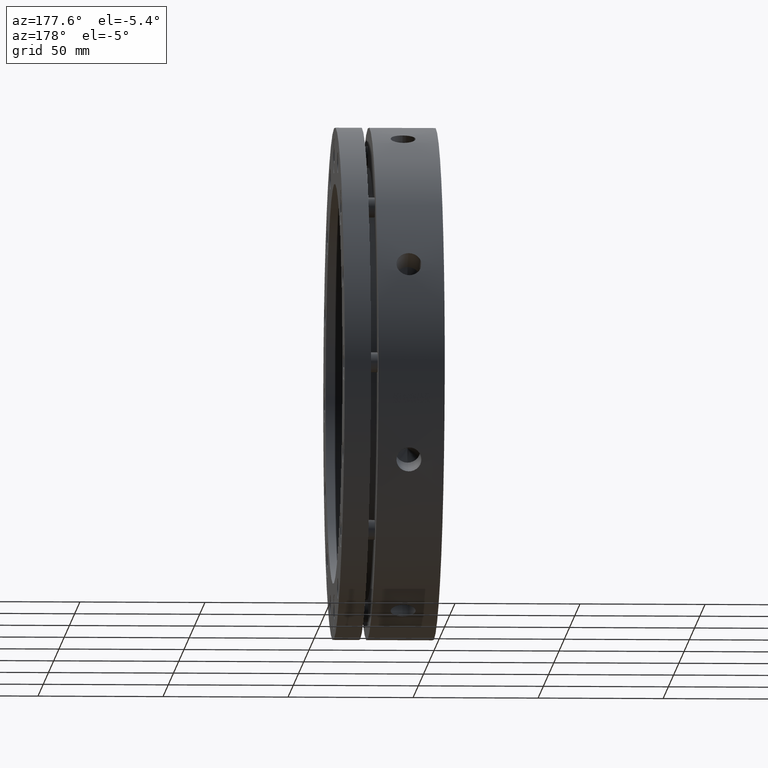
[diagram: clean part render]
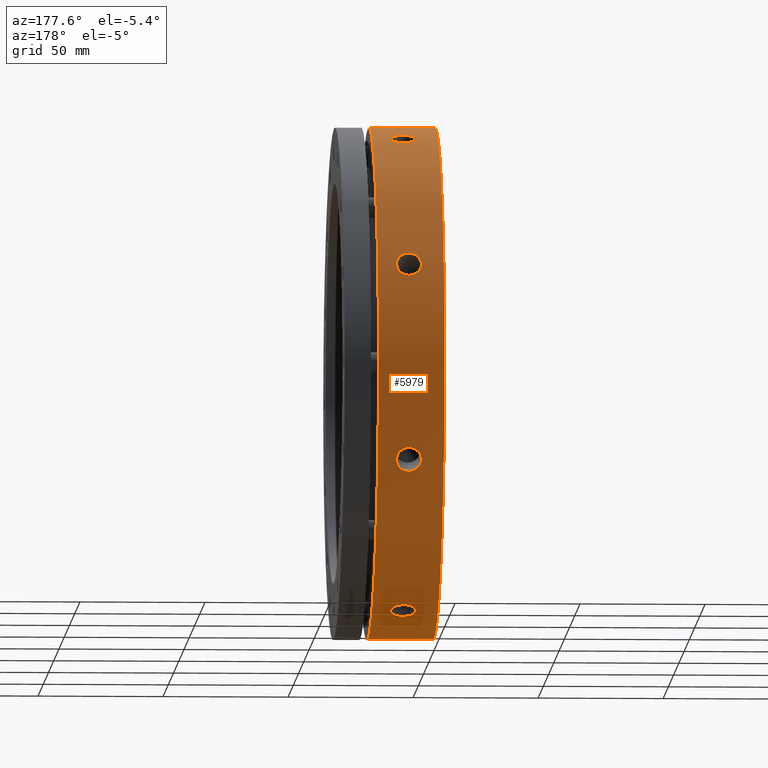
[diagram: same view with one face highlighted and labeled with its STEP entity id]
A machine part, auxiliary view. The second image highlights one B-rep face of the part: STEP entity #5979.
In plain terms, the highlighted cylindrical surface (partial cylindrical patch) has radius 102.5 mm, axis along (1, 0, 0).
Its self-contained STEP definition (entity closure, byte-faithful):
#38 = AXIS2_PLACEMENT_3D ( 'NONE', #4442, #4443, #4444 ) ;
#39 = AXIS2_PLACEMENT_3D ( 'NONE', #4636, #4637, #4638 ) ;
#150 = AXIS2_PLACEMENT_3D ( 'NONE', #497, #494, #496 ) ;
#494 = DIRECTION ( 'NONE',  ( 1.000000000000000000, 0.0000000000000000000, 0.0000000000000000000 ) ) ;
#496 = DIRECTION ( 'NONE',  ( 0.0000000000000000000, 0.0000000000000000000, -1.000000000000000000 ) ) ;
#497 = CARTESIAN_POINT ( 'NONE',  ( 19.99999999999997200, 0.0000000000000000000, 0.0000000000000000000 ) ) ;
#837 = VERTEX_POINT ( 'NONE', #1422 ) ;
#840 = VERTEX_POINT ( 'NONE', #1418 ) ;
#841 = VERTEX_POINT ( 'NONE', #1426 ) ;
#842 = VERTEX_POINT ( 'NONE', #1425 ) ;
#1296 = EDGE_LOOP ( 'NONE', ( #1330, #1331 ) ) ;
#1300 = EDGE_LOOP ( 'NONE', ( #1326, #1327 ) ) ;
#1304 = EDGE_LOOP ( 'NONE', ( #5502, #1325 ) ) ;
#1315 = EDGE_LOOP ( 'NONE', ( #1328, #1329 ) ) ;
#1319 = EDGE_LOOP ( 'NONE', ( #1332, #1333, #1334, #1335 ) ) ;
#1325 = ORIENTED_EDGE ( 'NONE', *, *, #5744, .T. ) ;
#1326 = ORIENTED_EDGE ( 'NONE', *, *, #5742, .T. ) ;
#1327 = ORIENTED_EDGE ( 'NONE', *, *, #5655, .T. ) ;
#1328 = ORIENTED_EDGE ( 'NONE', *, *, #5743, .T. ) ;
#1329 = ORIENTED_EDGE ( 'NONE', *, *, #5741, .T. ) ;
#1330 = ORIENTED_EDGE ( 'NONE', *, *, #5740, .T. ) ;
#1331 = ORIENTED_EDGE ( 'NONE', *, *, #5737, .T. ) ;
#1332 = ORIENTED_EDGE ( 'NONE', *, *, #5739, .T. ) ;
#1333 = ORIENTED_EDGE ( 'NONE', *, *, #5738, .T. ) ;
#1334 = ORIENTED_EDGE ( 'NONE', *, *, #5745, .T. ) ;
#1335 = ORIENTED_EDGE ( 'NONE', *, *, #5746, .F. ) ;
#1418 = CARTESIAN_POINT ( 'NONE',  ( -3.122502256758252800E-014, 0.0000000000000000000, -102.5000000000000100 ) ) ;
#1422 = CARTESIAN_POINT ( 'NONE',  ( 26.49999999999997900, 0.0000000000000000000, -102.5000000000000100 ) ) ;
#1425 = CARTESIAN_POINT ( 'NONE',  ( 13.99999999999997700, 92.67149958051646800, -43.79775297316448500 ) ) ;
#1426 = CARTESIAN_POINT ( 'NONE',  ( 13.99999999999997700, 34.55895764805162400, 96.49833390416735300 ) ) ;
#2071 = CARTESIAN_POINT ( 'NONE',  ( -3.122502256758252800E-014, 1.255262969126037200E-014, 102.5000000000000100 ) ) ;
#2072 = CARTESIAN_POINT ( 'NONE',  ( 13.99999999999997700, 92.67149958051645300, 43.79775297316447800 ) ) ;
#2073 = CARTESIAN_POINT ( 'NONE',  ( 13.99999999999997700, 34.55895764805161000, -96.49833390416736700 ) ) ;
#2078 = CARTESIAN_POINT ( 'NONE',  ( 13.99999999999997700, 43.79775297316449900, 92.67149958051645300 ) ) ;
#2079 = CARTESIAN_POINT ( 'NONE',  ( 13.99999999999997700, 96.49833390416736700, 34.55895764805161000 ) ) ;
#2080 = CARTESIAN_POINT ( 'NONE',  ( 13.99999999999997700, 43.79775297316447800, -92.67149958051645300 ) ) ;
#2081 = CARTESIAN_POINT ( 'NONE',  ( 13.99999999999997700, 96.49833390416736700, -34.55895764805161700 ) ) ;
#2082 = CARTESIAN_POINT ( 'NONE',  ( 26.49999999999997900, 1.255262969126037200E-014, 102.5000000000000100 ) ) ;
#3959 = CARTESIAN_POINT ( 'NONE',  ( 13.99999999999997700, 96.49833390416736700, 34.55895764805161000 ) ) ;
#3960 = CARTESIAN_POINT ( 'NONE',  ( 14.32610987450070400, 96.49833390416733900, 34.55895764805161000 ) ) ;
#3965 = CARTESIAN_POINT ( 'NONE',  ( 14.65733575371293700, 96.48733289431515900, 34.58971939376618800 ) ) ;
#3966 = CARTESIAN_POINT ( 'NONE',  ( 15.29848184151969500, 96.44405848933981000, 34.71019560450030600 ) ) ;
#3967 = CARTESIAN_POINT ( 'NONE',  ( 15.61010808271129400, 96.41202564002897200, 34.79923913236787300 ) ) ;
#3968 = CARTESIAN_POINT ( 'NONE',  ( 16.21536522272568300, 96.32657016155272300, 35.03509116752495300 ) ) ;
#3969 = CARTESIAN_POINT ( 'NONE',  ( 16.50802265644296400, 96.27294253316647100, 35.18242976404695100 ) ) ;
#3970 = CARTESIAN_POINT ( 'NONE',  ( 17.04962758242717100, 96.14796007054273700, 35.52256469301993700 ) ) ;
#3971 = CARTESIAN_POINT ( 'NONE',  ( 17.30207116379845900, 96.07618457453568800, 35.71654061675380400 ) ) ;
#3972 = CARTESIAN_POINT ( 'NONE',  ( 17.76879344786817700, 95.91246960301356200, 36.15387518205325500 ) ) ;
#3973 = CARTESIAN_POINT ( 'NONE',  ( 17.97585978668183400, 95.82300658715657000, 36.39058619239849400 ) ) ;
#3974 = CARTESIAN_POINT ( 'NONE',  ( 18.24732360166880000, 95.67776899786757400, 36.76999943293240800 ) ) ;
#3975 = CARTESIAN_POINT ( 'NONE',  ( 18.33132006099477700, 95.62747582298828800, 36.90063399058707500 ) ) ;
#3976 = CARTESIAN_POINT ( 'NONE',  ( 18.48604952963857800, 95.52295146457144900, 37.17037348051016500 ) ) ;
#3977 = CARTESIAN_POINT ( 'NONE',  ( 18.55696218777415000, 95.46848998173422300, 37.31005720077892100 ) ) ;
#3978 = CARTESIAN_POINT ( 'NONE',  ( 18.74509430430704200, 95.30244285925766700, 37.73309125859503900 ) ) ;
#3979 = CARTESIAN_POINT ( 'NONE',  ( 18.83957171716016900, 95.18730604285066500, 38.02274827925048600 ) ) ;
#3980 = CARTESIAN_POINT ( 'NONE',  ( 18.96732987876120200, 94.94778554888031900, 38.61697344130422500 ) ) ;
#3981 = CARTESIAN_POINT ( 'NONE',  ( 19.00022771420598000, 94.82273896029163000, 38.92309440697961500 ) ) ;
#3982 = CARTESIAN_POINT ( 'NONE',  ( 18.99976988428112900, 94.56991295236015600, 39.53341202488437700 ) ) ;
#3983 = CARTESIAN_POINT ( 'NONE',  ( 18.96713576489195000, 94.44414146530667200, 39.83285349128378500 ) ) ;
#3984 = CARTESIAN_POINT ( 'NONE',  ( 18.87155251866171900, 94.25652939708791700, 40.27383995362436100 ) ) ;
#3985 = CARTESIAN_POINT ( 'NONE',  ( 18.83186165902429100, 94.19416979680895000, 40.41946365101561900 ) ) ;
#3986 = CARTESIAN_POINT ( 'NONE',  ( 18.73646076360221700, 94.06986468132281200, 40.70792581775023000 ) ) ;
#3987 = CARTESIAN_POINT ( 'NONE',  ( 18.68049313187259800, 94.00775924805148500, 40.85112119065471600 ) ) ;
#3988 = CARTESIAN_POINT ( 'NONE',  ( 18.49199198372262000, 93.82620591606378500, 41.26723505263058200 ) ) ;
#3989 = CARTESIAN_POINT ( 'NONE',  ( 18.33824750578520100, 93.71016280766181700, 41.52985930786684300 ) ) ;
#3990 = CARTESIAN_POINT ( 'NONE',  ( 17.97508315744157100, 93.48866836826124400, 42.02609563472404400 ) ) ;
#3991 = CARTESIAN_POINT ( 'NONE',  ( 17.76378849477159600, 93.38281004687525000, 42.26054828801952100 ) ) ;
#3992 = CARTESIAN_POINT ( 'NONE',  ( 17.30231337094845400, 93.19175450726176300, 42.68020672059900300 ) ) ;
#3993 = CARTESIAN_POINT ( 'NONE',  ( 17.05052230091687800, 93.10530733848398200, 42.86822997709587200 ) ) ;
#3994 = CARTESIAN_POINT ( 'NONE',  ( 16.50377644171319200, 92.95185774950526500, 43.19994834347000500 ) ) ;
#3995 = CARTESIAN_POINT ( 'NONE',  ( 16.21279981548669400, 92.88624560309516200, 43.34063809917992700 ) ) ;
#3996 = CARTESIAN_POINT ( 'NONE',  ( 15.61109441456621200, 92.78057361465272400, 43.56639407638189700 ) ) ;
#3997 = CARTESIAN_POINT ( 'NONE',  ( 15.29592215945044000, 92.73970933276726200, 43.65318342185536700 ) ) ;
#3998 = CARTESIAN_POINT ( 'NONE',  ( 14.65053394052820600, 92.68503054680148500, 43.76915834839398700 ) ) ;
#3999 = CARTESIAN_POINT ( 'NONE',  ( 14.32610966757651200, 92.67149958051649600, 43.79775297316449900 ) ) ;
#4000 = CARTESIAN_POINT ( 'NONE',  ( 13.99999999999997700, 92.67149958051645300, 43.79775297316447800 ) ) ;
#4006 = CARTESIAN_POINT ( 'NONE',  ( 13.99999999999997700, 34.55895764805162400, 96.49833390416735300 ) ) ;
#4007 = CARTESIAN_POINT ( 'NONE',  ( 13.67389033251383000, 34.55895764805163100, 96.49833390416736700 ) ) ;
#4011 = CARTESIAN_POINT ( 'NONE',  ( 13.34266466475485700, 34.58971935420560600, 96.48733290844420200 ) ) ;
#4012 = CARTESIAN_POINT ( 'NONE',  ( 12.70151896101123300, 34.71019541462606400, 96.44405855762246900 ) ) ;
#4013 = CARTESIAN_POINT ( 'NONE',  ( 12.38989290089886800, 34.79923883210531700, 96.41202574820030700 ) ) ;
#4014 = CARTESIAN_POINT ( 'NONE',  ( 11.78463609896788200, 35.03509056947447000, 96.32657037886411900 ) ) ;
#4015 = CARTESIAN_POINT ( 'NONE',  ( 11.49197878941848600, 35.18242899233134600, 96.27294281478369000 ) ) ;
#4016 = CARTESIAN_POINT ( 'NONE',  ( 10.95037406600939500, 35.52256352147697500, 96.14796050297518100 ) ) ;
#4017 = CARTESIAN_POINT ( 'NONE',  ( 10.69793056358424500, 35.71653921647081400, 96.07618509440163700 ) ) ;
#4018 = CARTESIAN_POINT ( 'NONE',  ( 10.23120838005397800, 36.15387325089698600, 95.91247033026255100 ) ) ;
#4019 = CARTESIAN_POINT ( 'NONE',  ( 10.02414198692712000, 36.39058405043350300, 95.82300739979393700 ) ) ;
#4020 = CARTESIAN_POINT ( 'NONE',  ( 9.752678096406656400, 36.76999689114229100, 95.67776997450110300 ) ) ;
#4021 = CARTESIAN_POINT ( 'NONE',  ( 9.668681603407579300, 36.90063131019191200, 95.62747685705888000 ) ) ;
#4022 = CARTESIAN_POINT ( 'NONE',  ( 9.513952047296204000, 37.17037051029506500, 95.52295262011867300 ) ) ;
#4023 = CARTESIAN_POINT ( 'NONE',  ( 9.443039324532264800, 37.31005409716431800, 95.46849119445254000 ) ) ;
#4024 = CARTESIAN_POINT ( 'NONE',  ( 9.254906970430319300, 37.73308779831123200, 95.30244422846274700 ) ) ;
#4025 = CARTESIAN_POINT ( 'NONE',  ( 9.160429368411648500, 38.02274457405338400, 95.18730752195315900 ) ) ;
#4026 = CARTESIAN_POINT ( 'NONE',  ( 9.032670738789299500, 38.61696922500432500, 94.94778726277756700 ) ) ;
#4027 = CARTESIAN_POINT ( 'NONE',  ( 8.999772614276654500, 38.92308950979667500, 94.82274097142749300 ) ) ;
#4028 = CARTESIAN_POINT ( 'NONE',  ( 9.000229780272164200, 39.53340763186726300, 94.56991478971892200 ) ) ;
#4029 = CARTESIAN_POINT ( 'NONE',  ( 9.032863624753957800, 39.83284934027428600, 94.44414321688633200 ) ) ;
#4030 = CARTESIAN_POINT ( 'NONE',  ( 9.128446513428521300, 40.27383615555487500, 94.25653102013519900 ) ) ;
#4031 = CARTESIAN_POINT ( 'NONE',  ( 9.168137263232925000, 40.41945996887886800, 94.19417137704651600 ) ) ;
#4032 = CARTESIAN_POINT ( 'NONE',  ( 9.263537954345185500, 40.70792236460113900, 94.06986617584722400 ) ) ;
#4033 = CARTESIAN_POINT ( 'NONE',  ( 9.319505501482092700, 40.85111787886371800, 94.00776068744259800 ) ) ;
#4034 = CARTESIAN_POINT ( 'NONE',  ( 9.508006445550613300, 41.26723217513978900, 93.82620718266460400 ) ) ;
#4035 = CARTESIAN_POINT ( 'NONE',  ( 9.661750829796664800, 41.52985669710154300, 93.71016396546943400 ) ) ;
#4036 = CARTESIAN_POINT ( 'NONE',  ( 10.02491505194403100, 42.02609352444842000, 93.48866931768402800 ) ) ;
#4037 = CARTESIAN_POINT ( 'NONE',  ( 10.23620971061820800, 42.26054644621393000, 93.38281088104713500 ) ) ;
#4038 = CARTESIAN_POINT ( 'NONE',  ( 10.69768491139634200, 42.68020536840262500, 93.19175512720529800 ) ) ;
#4039 = CARTESIAN_POINT ( 'NONE',  ( 10.94947604815599400, 42.86822883996875100, 93.10530786245840300 ) ) ;
#4040 = CARTESIAN_POINT ( 'NONE',  ( 11.49622208827096200, 43.19994758707666400, 92.95185810145442000 ) ) ;
#4041 = CARTESIAN_POINT ( 'NONE',  ( 11.78719887957196200, 43.34063753018498500, 92.88624586879387800 ) ) ;
#4042 = CARTESIAN_POINT ( 'NONE',  ( 12.38890460059897000, 43.56639378626738300, 92.78057375108639300 ) ) ;
#4043 = CARTESIAN_POINT ( 'NONE',  ( 12.70407702409552900, 43.65318323708648800, 92.73970941979602900 ) ) ;
#4044 = CARTESIAN_POINT ( 'NONE',  ( 13.34946564792068300, 43.76915831249285600, 92.68503056381216300 ) ) ;
#4045 = CARTESIAN_POINT ( 'NONE',  ( 13.67389012558963700, 43.79775297316449900, 92.67149958051646800 ) ) ;
#4046 = CARTESIAN_POINT ( 'NONE',  ( 13.99999999999997700, 43.79775297316449900, 92.67149958051645300 ) ) ;
#4386 = CARTESIAN_POINT ( 'NONE',  ( 13.99999999999997700, 92.67149958051646800, -43.79775297316448500 ) ) ;
#4399 = CARTESIAN_POINT ( 'NONE',  ( 14.32610987450070500, 34.55895764805161000, -96.49833390416733900 ) ) ;
#4401 = CARTESIAN_POINT ( 'NONE',  ( 13.99999999999997700, 34.55895764805161000, -96.49833390416736700 ) ) ;
#4402 = CARTESIAN_POINT ( 'NONE',  ( 19.99999999999997200, 1.255262969126037200E-014, 102.5000000000000100 ) ) ;
#4403 = CARTESIAN_POINT ( 'NONE',  ( 14.65733575371293700, 34.58971939376618100, -96.48733289431513100 ) ) ;
#4404 = CARTESIAN_POINT ( 'NONE',  ( 15.29848184151969700, 34.71019560450029900, -96.44405848933982400 ) ) ;
#4405 = CARTESIAN_POINT ( 'NONE',  ( 15.61010808271129400, 34.79923913236786600, -96.41202564002892900 ) ) ;
#4406 = CARTESIAN_POINT ( 'NONE',  ( 16.21536522272568700, 35.03509116752494600, -96.32657016155269500 ) ) ;
#4407 = CARTESIAN_POINT ( 'NONE',  ( 16.50802265644297200, 35.18242976404695100, -96.27294253316642900 ) ) ;
#4408 = CARTESIAN_POINT ( 'NONE',  ( 17.04962758242717800, 35.52256469301994500, -96.14796007054272300 ) ) ;
#4409 = CARTESIAN_POINT ( 'NONE',  ( 17.30207116379845200, 35.71654061675380400, -96.07618457453567400 ) ) ;
#4410 = CARTESIAN_POINT ( 'NONE',  ( 17.76879344786817700, 36.15387518205324800, -95.91246960301350600 ) ) ;
#4411 = CARTESIAN_POINT ( 'NONE',  ( 17.97585978668183100, 36.39058619239847300, -95.82300658715658400 ) ) ;
#4412 = CARTESIAN_POINT ( 'NONE',  ( 18.24732360166880000, 36.76999943293243700, -95.67776899786760200 ) ) ;
#4413 = CARTESIAN_POINT ( 'NONE',  ( 18.33132006099478800, 36.90063399058708200, -95.62747582298834500 ) ) ;
#4414 = CARTESIAN_POINT ( 'NONE',  ( 18.48604952963857800, 37.17037348051019300, -95.52295146457146300 ) ) ;
#4415 = CARTESIAN_POINT ( 'NONE',  ( 18.55696218777416100, 37.31005720077894900, -95.46848998173428000 ) ) ;
#4416 = CARTESIAN_POINT ( 'NONE',  ( 18.74509430430704500, 37.73309125859504600, -95.30244285925766700 ) ) ;
#4417 = CARTESIAN_POINT ( 'NONE',  ( 18.83957171716017600, 38.02274827925048600, -95.18730604285067900 ) ) ;
#4418 = CARTESIAN_POINT ( 'NONE',  ( 18.96732987876120200, 38.61697344130423200, -94.94778554888030400 ) ) ;
#4419 = CARTESIAN_POINT ( 'NONE',  ( 19.00022771420598000, 38.92309440697962200, -94.82273896029161600 ) ) ;
#4420 = CARTESIAN_POINT ( 'NONE',  ( 18.99976988428112900, 39.53341202488439900, -94.56991295236017000 ) ) ;
#4421 = CARTESIAN_POINT ( 'NONE',  ( 18.96713576489195000, 39.83285349128379200, -94.44414146530667200 ) ) ;
#4422 = CARTESIAN_POINT ( 'NONE',  ( 18.87155251866171200, 40.27383995362437500, -94.25652939708784600 ) ) ;
#4423 = CARTESIAN_POINT ( 'NONE',  ( 18.83186165902428000, 40.41946365101563300, -94.19416979680895000 ) ) ;
#4424 = CARTESIAN_POINT ( 'NONE',  ( 18.73646076360221400, 40.70792581775024400, -94.06986468132285500 ) ) ;
#4425 = CARTESIAN_POINT ( 'NONE',  ( 18.68049313187259800, 40.85112119065475200, -94.00775924805149900 ) ) ;
#4426 = CARTESIAN_POINT ( 'NONE',  ( 18.49199198372261700, 41.26723505263060300, -93.82620591606381300 ) ) ;
#4427 = CARTESIAN_POINT ( 'NONE',  ( 18.33824750578518300, 41.52985930786685700, -93.71016280766181700 ) ) ;
#4428 = CARTESIAN_POINT ( 'NONE',  ( 17.97508315744156300, 42.02609563472406500, -93.48866836826121600 ) ) ;
#4429 = CARTESIAN_POINT ( 'NONE',  ( 17.76378849477159600, 42.26054828801952800, -93.38281004687523500 ) ) ;
#4430 = CARTESIAN_POINT ( 'NONE',  ( 17.30231337094845400, 42.68020672059901000, -93.19175450726179100 ) ) ;
#4431 = CARTESIAN_POINT ( 'NONE',  ( 17.05052230091687100, 42.86822997709587200, -93.10530733848398200 ) ) ;
#4432 = CARTESIAN_POINT ( 'NONE',  ( 16.50377644171318200, 43.19994834347003400, -92.95185774950525100 ) ) ;
#4433 = CARTESIAN_POINT ( 'NONE',  ( 16.21279981548668700, 43.34063809917992000, -92.88624560309514800 ) ) ;
#4434 = CARTESIAN_POINT ( 'NONE',  ( 15.61109441456621000, 43.56639407638191800, -92.78057361465273800 ) ) ;
#4435 = CARTESIAN_POINT ( 'NONE',  ( 15.29592215945043600, 43.65318342185536700, -92.73970933276726200 ) ) ;
#4436 = CARTESIAN_POINT ( 'NONE',  ( 14.65053394052819900, 43.76915834839397900, -92.68503054680149900 ) ) ;
#4437 = CARTESIAN_POINT ( 'NONE',  ( 14.32610966757650500, 43.79775297316447800, -92.67149958051646800 ) ) ;
#4438 = CARTESIAN_POINT ( 'NONE',  ( 13.99999999999997700, 43.79775297316447800, -92.67149958051645300 ) ) ;
#4439 = DIRECTION ( 'NONE',  ( 1.000000000000000000, 0.0000000000000000000, 0.0000000000000000000 ) ) ;
#4440 = CARTESIAN_POINT ( 'NONE',  ( 13.99999999999997700, 43.79775297316447800, -92.67149958051645300 ) ) ;
#4441 = CARTESIAN_POINT ( 'NONE',  ( 13.67389033251382600, 43.79775297316446400, -92.67149958051646800 ) ) ;
#4442 = CARTESIAN_POINT ( 'NONE',  ( -3.122502256758252800E-014, 0.0000000000000000000, 0.0000000000000000000 ) ) ;
#4443 = DIRECTION ( 'NONE',  ( 1.000000000000000000, 0.0000000000000000000, 0.0000000000000000000 ) ) ;
#4444 = DIRECTION ( 'NONE',  ( 0.0000000000000000000, 0.0000000000000000000, -1.000000000000000000 ) ) ;
#4445 = CARTESIAN_POINT ( 'NONE',  ( 14.32610987450070500, 92.67149958051648200, -43.79775297316448500 ) ) ;
#4446 = CARTESIAN_POINT ( 'NONE',  ( 13.34266466475486400, 43.76822228346648600, -92.68547251286315700 ) ) ;
#4447 = CARTESIAN_POINT ( 'NONE',  ( 12.70151896101123700, 43.65243325725505500, -92.74006236523963800 ) ) ;
#4448 = CARTESIAN_POINT ( 'NONE',  ( 12.38989290089886800, 43.56681943617256500, -92.78037495279633600 ) ) ;
#4449 = CARTESIAN_POINT ( 'NONE',  ( 11.78463609896789100, 43.33962100217781500, -92.88672124449831800 ) ) ;
#4450 = CARTESIAN_POINT ( 'NONE',  ( 11.49197878941849100, 43.19751659002658800, -92.95298482820993500 ) ) ;
#4451 = CARTESIAN_POINT ( 'NONE',  ( 10.95037406600940100, 42.86862931774386700, -93.10512042007631800 ) ) ;
#4452 = CARTESIAN_POINT ( 'NONE',  ( 10.69793056358424900, 42.68071491030353600, -93.19152907126702700 ) ) ;
#4453 = CARTESIAN_POINT ( 'NONE',  ( 10.23120838005398200, 42.25570922901403000, -93.38500711275035800 ) ) ;
#4454 = CARTESIAN_POINT ( 'NONE',  ( 10.02414198692712300, 42.02506957268247600, -93.48912707948355200 ) ) ;
#4455 = CARTESIAN_POINT ( 'NONE',  ( 9.752678096406668800, 41.65408581184141900, -93.65471410371135600 ) ) ;
#4456 = CARTESIAN_POINT ( 'NONE',  ( 9.668681603407588200, 41.52615072388465500, -93.71152398288728600 ) ) ;
#4457 = CARTESIAN_POINT ( 'NONE',  ( 9.513952047296211100, 41.26150650960111900, -93.82834860369331400 ) ) ;
#4458 = CARTESIAN_POINT ( 'NONE',  ( 9.443039324532266600, 41.12422525470377400, -93.88860977178738700 ) ) ;
#4459 = CARTESIAN_POINT ( 'NONE',  ( 9.254906970430321100, 40.70768232030553000, -94.07032683489201500 ) ) ;
#4460 = CARTESIAN_POINT ( 'NONE',  ( 9.160429368411652000, 40.42145010402522600, -94.19373115929948900 ) ) ;
#4461 = CARTESIAN_POINT ( 'NONE',  ( 9.032670738789299500, 39.83190342429494300, -94.44454504004042400 ) ) ;
#4462 = CARTESIAN_POINT ( 'NONE',  ( 8.999772614276651000, 39.52702261448364900, -94.57258368870002100 ) ) ;
#4463 = CARTESIAN_POINT ( 'NONE',  ( 9.000229780272162500, 38.91668742413887800, -94.82536866394953300 ) ) ;
#4464 = CARTESIAN_POINT ( 'NONE',  ( 9.032863624753952400, 38.61601622952378000, -94.94817199450382400 ) ) ;
#4465 = CARTESIAN_POINT ( 'NONE',  ( 9.128446513428514200, 38.17152960546897600, -95.12733490544656000 ) ) ;
#4466 = CARTESIAN_POINT ( 'NONE',  ( 9.168137263232921400, 38.02446309306495200, -95.18621156484975600 ) ) ;
#4467 = CARTESIAN_POINT ( 'NONE',  ( 9.263537954345185500, 37.73259232622768900, -95.30228823027761100 ) ) ;
#4468 = CARTESIAN_POINT ( 'NONE',  ( 9.319505501482085600, 37.58742259505729800, -95.35962753744836100 ) ) ;
#4469 = CARTESIAN_POINT ( 'NONE',  ( 9.508006445550600800, 37.16480764003507200, -95.52548706371709400 ) ) ;
#4470 = CARTESIAN_POINT ( 'NONE',  ( 9.661750829796663000, 36.89704911386066000, -95.62913569831270900 ) ) ;
#4471 = CARTESIAN_POINT ( 'NONE',  ( 10.02491505194402600, 36.38953632072355800, -95.82340775655856600 ) ) ;
#4472 = CARTESIAN_POINT ( 'NONE',  ( 10.23620971061819400, 36.14889985148246200, -95.91433778901624400 ) ) ;
#4473 = CARTESIAN_POINT ( 'NONE',  ( 10.69768491139632300, 35.71705936269112400, -96.07598463955504500 ) ) ;
#4474 = CARTESIAN_POINT ( 'NONE',  ( 10.94947604815598100, 35.52297924380693000, -96.14780986420413500 ) ) ;
#4475 = CARTESIAN_POINT ( 'NONE',  ( 11.49622208827094900, 35.17991330170281800, -96.27386507315348800 ) ) ;
#4476 = CARTESIAN_POINT ( 'NONE',  ( 11.78719887957195300, 35.03403563424311100, -96.32695303132709300 ) ) ;
#4477 = CARTESIAN_POINT ( 'NONE',  ( 12.38890460059895700, 34.79968038365868200, -96.41186533988495500 ) ) ;
#4478 = CARTESIAN_POINT ( 'NONE',  ( 12.70407702409551800, 34.70941552868495000, -96.44433930333049400 ) ) ;
#4479 = CARTESIAN_POINT ( 'NONE',  ( 13.34946564792066900, 34.58874497656276500, -96.48768227574524300 ) ) ;
#4480 = CARTESIAN_POINT ( 'NONE',  ( 13.67389012558962400, 34.55895764805160300, -96.49833390416733900 ) ) ;
#4481 = CARTESIAN_POINT ( 'NONE',  ( 13.99999999999997700, 34.55895764805161000, -96.49833390416736700 ) ) ;
#4482 = CARTESIAN_POINT ( 'NONE',  ( 13.99999999999997700, 92.67149958051645300, 43.79775297316447800 ) ) ;
#4483 = CARTESIAN_POINT ( 'NONE',  ( 13.67389033251382800, 92.67149958051645300, 43.79775297316446400 ) ) ;
#4484 = CARTESIAN_POINT ( 'NONE',  ( 14.65733575371293400, 92.68547253084597100, -43.76822224550215200 ) ) ;
#4485 = CARTESIAN_POINT ( 'NONE',  ( 15.29848184151969200, 92.74006245121786700, -43.65243307471053700 ) ) ;
#4486 = CARTESIAN_POINT ( 'NONE',  ( 15.61010808271129100, 92.78037508862536200, -43.56681914736617500 ) ) ;
#4487 = CARTESIAN_POINT ( 'NONE',  ( 16.21536522272568300, 92.88672151372148300, -43.33962042562987400 ) ) ;
#4488 = CARTESIAN_POINT ( 'NONE',  ( 16.50802265644297200, 92.95298517476183500, -43.19751584520778200 ) ) ;
#4489 = CARTESIAN_POINT ( 'NONE',  ( 17.04962758242717800, 93.10512094270640700, -42.86862818356193800 ) ) ;
#4490 = CARTESIAN_POINT ( 'NONE',  ( 17.30207116379845200, 93.19152969381593700, -42.68071355255320800 ) ) ;
#4491 = CARTESIAN_POINT ( 'NONE',  ( 17.76879344786817300, 93.38500796404135000, -42.25570734923760300 ) ) ;
#4492 = CARTESIAN_POINT ( 'NONE',  ( 17.97585978668183400, 93.48912801946015300, -42.02506748346314000 ) ) ;
#4493 = CARTESIAN_POINT ( 'NONE',  ( 18.24732360166879600, 93.65471521044419500, -41.65408332394017800 ) ) ;
#4494 = CARTESIAN_POINT ( 'NONE',  ( 18.33132006099477000, 93.71152514701461200, -41.52614809736074600 ) ) ;
#4495 = CARTESIAN_POINT ( 'NONE',  ( 18.48604952963857100, 93.82834988685726800, -41.26150359224656900 ) ) ;
#4496 = CARTESIAN_POINT ( 'NONE',  ( 18.55696218777416100, 93.88861110885302700, -41.12422220259549700 ) ) ;
#4497 = CARTESIAN_POINT ( 'NONE',  ( 18.74509430430704500, 94.07032831350798600, -40.70767890534117600 ) ) ;
#4498 = CARTESIAN_POINT ( 'NONE',  ( 18.83957171716017200, 94.19373273338608500, -40.42144643817180600 ) ) ;
#4499 = CARTESIAN_POINT ( 'NONE',  ( 18.96732987876120200, 94.44454680950637700, -39.83189923101232200 ) ) ;
#4500 = CARTESIAN_POINT ( 'NONE',  ( 19.00022771420597700, 94.57258572944347500, -39.52701772956459100 ) ) ;
#4501 = CARTESIAN_POINT ( 'NONE',  ( 18.99976988428112900, 94.82537047107294400, -38.91668301859785100 ) ) ;
#4502 = CARTESIAN_POINT ( 'NONE',  ( 18.96713576489195000, 94.94817369115699500, -38.61601205576294400 ) ) ;
#4503 = CARTESIAN_POINT ( 'NONE',  ( 18.87155251866171200, 95.12733644341946600, -38.17152577216047900 ) ) ;
#4504 = CARTESIAN_POINT ( 'NONE',  ( 18.83186165902427700, 95.18621305111699400, -38.02445937200434400 ) ) ;
#4505 = CARTESIAN_POINT ( 'NONE',  ( 18.73646076360222100, 95.30228961523444300, -37.73258882769415800 ) ) ;
#4506 = CARTESIAN_POINT ( 'NONE',  ( 18.68049313187260200, 95.35962886143501300, -37.58741923546414700 ) ) ;
#4507 = CARTESIAN_POINT ( 'NONE',  ( 18.49199198372262700, 95.52548820278839500, -37.16480470971979600 ) ) ;
#4508 = CARTESIAN_POINT ( 'NONE',  ( 18.33824750578519100, 95.62913672570901700, -36.89704644907716600 ) ) ;
#4509 = CARTESIAN_POINT ( 'NONE',  ( 17.97508315744157100, 95.82340857740557300, -36.38953415719007700 ) ) ;
#4510 = CARTESIAN_POINT ( 'NONE',  ( 17.76378849477160300, 95.91433850152094500, -36.14889795928060300 ) ) ;
#4511 = CARTESIAN_POINT ( 'NONE',  ( 17.30231337094845000, 96.07598515733607800, -35.71705796817759200 ) ) ;
#4512 = CARTESIAN_POINT ( 'NONE',  ( 17.05052230091687400, 96.14781029776861500, -35.52297806923073900 ) ) ;
#4513 = CARTESIAN_POINT ( 'NONE',  ( 16.50377644171319200, 96.27386535913875300, -35.17991251798631700 ) ) ;
#4514 = CARTESIAN_POINT ( 'NONE',  ( 16.21279981548669400, 96.32695324578989500, -35.03403504402555100 ) ) ;
#4515 = CARTESIAN_POINT ( 'NONE',  ( 15.61109441456621600, 96.41186544855372600, -34.79968008204353000 ) ) ;
#4516 = CARTESIAN_POINT ( 'NONE',  ( 15.29592215945044100, 96.44433937244321000, -34.70941533649499200 ) ) ;
#4517 = CARTESIAN_POINT ( 'NONE',  ( 14.65053394052820000, 96.48768228910279300, -34.58874493914844100 ) ) ;
#4518 = CARTESIAN_POINT ( 'NONE',  ( 14.32610966757650300, 96.49833390416733900, -34.55895764805161000 ) ) ;
#4519 = CARTESIAN_POINT ( 'NONE',  ( 13.99999999999997700, 96.49833390416736700, -34.55895764805161700 ) ) ;
#4520 = CARTESIAN_POINT ( 'NONE',  ( 13.99999999999997700, 96.49833390416736700, -34.55895764805161700 ) ) ;
#4521 = CARTESIAN_POINT ( 'NONE',  ( 13.67389033251383200, 96.49833390416736700, -34.55895764805161700 ) ) ;
#4522 = CARTESIAN_POINT ( 'NONE',  ( 13.34266466475485700, 92.68547251286317100, 43.76822228346650000 ) ) ;
#4523 = CARTESIAN_POINT ( 'NONE',  ( 12.70151896101123500, 92.74006236523965200, 43.65243325725505500 ) ) ;
#4524 = CARTESIAN_POINT ( 'NONE',  ( 12.38989290089886500, 92.78037495279633600, 43.56681943617257200 ) ) ;
#4525 = CARTESIAN_POINT ( 'NONE',  ( 11.78463609896788400, 92.88672124449831800, 43.33962100217781500 ) ) ;
#4526 = CARTESIAN_POINT ( 'NONE',  ( 11.49197878941848600, 92.95298482820993500, 43.19751659002658100 ) ) ;
#4527 = CARTESIAN_POINT ( 'NONE',  ( 10.95037406600939900, 93.10512042007631800, 42.86862931774386000 ) ) ;
#4528 = CARTESIAN_POINT ( 'NONE',  ( 10.69793056358423800, 93.19152907126702700, 42.68071491030354300 ) ) ;
#4529 = CARTESIAN_POINT ( 'NONE',  ( 10.23120838005397100, 93.38500711275035800, 42.25570922901400200 ) ) ;
#4530 = CARTESIAN_POINT ( 'NONE',  ( 10.02414198692712000, 93.48912707948355200, 42.02506957268246900 ) ) ;
#4531 = CARTESIAN_POINT ( 'NONE',  ( 9.752678096406661700, 93.65471410371137000, 41.65408581184140500 ) ) ;
#4532 = CARTESIAN_POINT ( 'NONE',  ( 9.668681603407584600, 93.71152398288728600, 41.52615072388465500 ) ) ;
#4533 = CARTESIAN_POINT ( 'NONE',  ( 9.513952047296207600, 93.82834860369328600, 41.26150650960109800 ) ) ;
#4534 = CARTESIAN_POINT ( 'NONE',  ( 9.443039324532263000, 93.88860977178740100, 41.12422525470377400 ) ) ;
#4535 = CARTESIAN_POINT ( 'NONE',  ( 9.254906970430319300, 94.07032683489201500, 40.70768232030552300 ) ) ;
#4536 = CARTESIAN_POINT ( 'NONE',  ( 9.160429368411648500, 94.19373115929951700, 40.42145010402521200 ) ) ;
#4537 = CARTESIAN_POINT ( 'NONE',  ( 9.032670738789301300, 94.44454504004046700, 39.83190342429495000 ) ) ;
#4538 = CARTESIAN_POINT ( 'NONE',  ( 8.999772614276654500, 94.57258368870006400, 39.52702261448367000 ) ) ;
#4539 = CARTESIAN_POINT ( 'NONE',  ( 9.000229780272162500, 94.82536866394956100, 38.91668742413887100 ) ) ;
#4540 = CARTESIAN_POINT ( 'NONE',  ( 9.032863624753956000, 94.94817199450382400, 38.61601622952378000 ) ) ;
#4541 = CARTESIAN_POINT ( 'NONE',  ( 9.128446513428521300, 95.12733490544656000, 38.17152960546897600 ) ) ;
#4542 = CARTESIAN_POINT ( 'NONE',  ( 9.168137263232921400, 95.18621156484982700, 38.02446309306495200 ) ) ;
#4543 = CARTESIAN_POINT ( 'NONE',  ( 9.263537954345183700, 95.30228823027755400, 37.73259232622766000 ) ) ;
#4544 = CARTESIAN_POINT ( 'NONE',  ( 9.319505501482083800, 95.35962753744830400, 37.58742259505727600 ) ) ;
#4545 = CARTESIAN_POINT ( 'NONE',  ( 9.508006445550606100, 95.52548706371706500, 37.16480764003506500 ) ) ;
#4546 = CARTESIAN_POINT ( 'NONE',  ( 9.661750829796666600, 95.62913569831273700, 36.89704911386066800 ) ) ;
#4547 = CARTESIAN_POINT ( 'NONE',  ( 10.02491505194403100, 95.82340775655862300, 36.38953632072357200 ) ) ;
#4548 = CARTESIAN_POINT ( 'NONE',  ( 10.23620971061820300, 95.91433778901625800, 36.14889985148244700 ) ) ;
#4549 = CARTESIAN_POINT ( 'NONE',  ( 10.69768491139633300, 96.07598463955503100, 35.71705936269111000 ) ) ;
#4550 = CARTESIAN_POINT ( 'NONE',  ( 10.94947604815598800, 96.14780986420414900, 35.52297924380692300 ) ) ;
#4551 = CARTESIAN_POINT ( 'NONE',  ( 11.49622208827095800, 96.27386507315347300, 35.17991330170280400 ) ) ;
#4552 = CARTESIAN_POINT ( 'NONE',  ( 11.78719887957195500, 96.32695303132709300, 35.03403563424310400 ) ) ;
#4553 = CARTESIAN_POINT ( 'NONE',  ( 12.38890460059896600, 96.41186533988495500, 34.79968038365868200 ) ) ;
#4554 = CARTESIAN_POINT ( 'NONE',  ( 12.70407702409552700, 96.44433930333050900, 34.70941552868494300 ) ) ;
#4555 = CARTESIAN_POINT ( 'NONE',  ( 13.34946564792067900, 96.48768227574518600, 34.58874497656277900 ) ) ;
#4556 = CARTESIAN_POINT ( 'NONE',  ( 13.67389012558962200, 96.49833390416733900, 34.55895764805161000 ) ) ;
#4557 = CARTESIAN_POINT ( 'NONE',  ( 13.99999999999997700, 96.49833390416736700, 34.55895764805161000 ) ) ;
#4558 = CARTESIAN_POINT ( 'NONE',  ( 14.32610987450070700, 43.79775297316450600, 92.67149958051646800 ) ) ;
#4559 = CARTESIAN_POINT ( 'NONE',  ( 13.99999999999997700, 43.79775297316449900, 92.67149958051645300 ) ) ;
#4560 = CARTESIAN_POINT ( 'NONE',  ( 13.34266466475485800, 96.48733290844420200, -34.58971935420558500 ) ) ;
#4561 = CARTESIAN_POINT ( 'NONE',  ( 12.70151896101123500, 96.44405855762248300, -34.71019541462606400 ) ) ;
#4562 = CARTESIAN_POINT ( 'NONE',  ( 12.38989290089886800, 96.41202574820029300, -34.79923883210528900 ) ) ;
#4563 = CARTESIAN_POINT ( 'NONE',  ( 11.78463609896788900, 96.32657037886413300, -35.03509056947444100 ) ) ;
#4564 = CARTESIAN_POINT ( 'NONE',  ( 11.49197878941849100, 96.27294281478369000, -35.18242899233131700 ) ) ;
#4565 = CARTESIAN_POINT ( 'NONE',  ( 10.95037406600940200, 96.14796050297518100, -35.52256352147696800 ) ) ;
#4566 = CARTESIAN_POINT ( 'NONE',  ( 10.69793056358424000, 96.07618509440162300, -35.71653921647079200 ) ) ;
#4567 = CARTESIAN_POINT ( 'NONE',  ( 10.23120838005397800, 95.91247033026260700, -36.15387325089697900 ) ) ;
#4568 = CARTESIAN_POINT ( 'NONE',  ( 10.02414198692712900, 95.82300739979393700, -36.39058405043347500 ) ) ;
#4569 = CARTESIAN_POINT ( 'NONE',  ( 9.752678096406663500, 95.67776997450114600, -36.76999689114228400 ) ) ;
#4570 = CARTESIAN_POINT ( 'NONE',  ( 9.668681603407582900, 95.62747685705890900, -36.90063131019190500 ) ) ;
#4571 = CARTESIAN_POINT ( 'NONE',  ( 9.513952047296200500, 95.52295262011867300, -37.17037051029506500 ) ) ;
#4572 = CARTESIAN_POINT ( 'NONE',  ( 9.443039324532268400, 95.46849119445251100, -37.31005409716430400 ) ) ;
#4573 = CARTESIAN_POINT ( 'NONE',  ( 9.254906970430322800, 95.30244422846277500, -37.73308779831123200 ) ) ;
#4574 = CARTESIAN_POINT ( 'NONE',  ( 9.160429368411650200, 95.18730752195318700, -38.02274457405337700 ) ) ;
#4575 = CARTESIAN_POINT ( 'NONE',  ( 9.032670738789295900, 94.94778726277748100, -38.61696922500428300 ) ) ;
#4576 = CARTESIAN_POINT ( 'NONE',  ( 8.999772614276651000, 94.82274097142745000, -38.92308950979666100 ) ) ;
#4577 = CARTESIAN_POINT ( 'NONE',  ( 9.000229780272158900, 94.56991478971889400, -39.53340763186724200 ) ) ;
#4578 = CARTESIAN_POINT ( 'NONE',  ( 9.032863624753956000, 94.44414321688630300, -39.83284934027427200 ) ) ;
#4579 = CARTESIAN_POINT ( 'NONE',  ( 9.128446513428521300, 94.25653102013519900, -40.27383615555486100 ) ) ;
#4580 = CARTESIAN_POINT ( 'NONE',  ( 9.168137263232925000, 94.19417137704651600, -40.41945996887884700 ) ) ;
#4581 = CARTESIAN_POINT ( 'NONE',  ( 9.263537954345185500, 94.06986617584719600, -40.70792236460110300 ) ) ;
#4582 = CARTESIAN_POINT ( 'NONE',  ( 9.319505501482083800, 94.00776068744258400, -40.85111787886369000 ) ) ;
#4583 = CARTESIAN_POINT ( 'NONE',  ( 9.508006445550606100, 93.82620718266454700, -41.26723217513976000 ) ) ;
#4584 = CARTESIAN_POINT ( 'NONE',  ( 9.661750829796666600, 93.71016396546946200, -41.52985669710152900 ) ) ;
#4585 = CARTESIAN_POINT ( 'NONE',  ( 10.02491505194403300, 93.48866931768401400, -42.02609352444839200 ) ) ;
#4586 = CARTESIAN_POINT ( 'NONE',  ( 10.23620971061820700, 93.38281088104707800, -42.26054644621388000 ) ) ;
#4587 = CARTESIAN_POINT ( 'NONE',  ( 10.69768491139633300, 93.19175512720528300, -42.68020536840259600 ) ) ;
#4588 = CARTESIAN_POINT ( 'NONE',  ( 10.94947604815599000, 93.10530786245837500, -42.86822883996871500 ) ) ;
#4589 = CARTESIAN_POINT ( 'NONE',  ( 11.49622208827095600, 92.95185810145439100, -43.19994758707664300 ) ) ;
#4590 = CARTESIAN_POINT ( 'NONE',  ( 11.78719887957195700, 92.88624586879389300, -43.34063753018497800 ) ) ;
#4591 = CARTESIAN_POINT ( 'NONE',  ( 12.38890460059896400, 92.78057375108646500, -43.56639378626739000 ) ) ;
#4592 = CARTESIAN_POINT ( 'NONE',  ( 12.70407702409552700, 92.73970941979602900, -43.65318323708648800 ) ) ;
#4593 = CARTESIAN_POINT ( 'NONE',  ( 13.34946564792067200, 92.68503056381216300, -43.76915831249283400 ) ) ;
#4594 = CARTESIAN_POINT ( 'NONE',  ( 13.67389012558962600, 92.67149958051646800, -43.79775297316447800 ) ) ;
#4595 = CARTESIAN_POINT ( 'NONE',  ( 13.99999999999997700, 92.67149958051646800, -43.79775297316448500 ) ) ;
#4596 = DIRECTION ( 'NONE',  ( 1.000000000000000000, 0.0000000000000000000, 0.0000000000000000000 ) ) ;
#4597 = CARTESIAN_POINT ( 'NONE',  ( 19.99999999999997200, 0.0000000000000000000, -102.5000000000000100 ) ) ;
#4598 = CARTESIAN_POINT ( 'NONE',  ( 14.65733575371293200, 43.76822224550217300, 92.68547253084595600 ) ) ;
#4599 = CARTESIAN_POINT ( 'NONE',  ( 15.29848184151969500, 43.65243307471053700, 92.74006245121783800 ) ) ;
#4600 = CARTESIAN_POINT ( 'NONE',  ( 15.61010808271129200, 43.56681914736619600, 92.78037508862536200 ) ) ;
#4601 = CARTESIAN_POINT ( 'NONE',  ( 16.21536522272568300, 43.33962042562988200, 92.88672151372144000 ) ) ;
#4602 = CARTESIAN_POINT ( 'NONE',  ( 16.50802265644296400, 43.19751584520779600, 92.95298517476183500 ) ) ;
#4603 = CARTESIAN_POINT ( 'NONE',  ( 17.04962758242717100, 42.86862818356195200, 93.10512094270639200 ) ) ;
#4604 = CARTESIAN_POINT ( 'NONE',  ( 17.30207116379844800, 42.68071355255322900, 93.19152969381593700 ) ) ;
#4605 = CARTESIAN_POINT ( 'NONE',  ( 17.76879344786818000, 42.25570734923763200, 93.38500796404135000 ) ) ;
#4606 = CARTESIAN_POINT ( 'NONE',  ( 17.97585978668182700, 42.02506748346314000, 93.48912801946012500 ) ) ;
#4607 = CARTESIAN_POINT ( 'NONE',  ( 18.24732360166878900, 41.65408332394020600, 93.65471521044420900 ) ) ;
#4608 = CARTESIAN_POINT ( 'NONE',  ( 18.33132006099477000, 41.52614809736073900, 93.71152514701458400 ) ) ;
#4609 = CARTESIAN_POINT ( 'NONE',  ( 18.48604952963857400, 41.26150359224658400, 93.82834988685725400 ) ) ;
#4610 = CARTESIAN_POINT ( 'NONE',  ( 18.55696218777415400, 41.12422220259549700, 93.88861110885301300 ) ) ;
#4611 = CARTESIAN_POINT ( 'NONE',  ( 18.74509430430704900, 40.70767890534119000, 94.07032831350797200 ) ) ;
#4612 = CARTESIAN_POINT ( 'NONE',  ( 18.83957171716017600, 40.42144643817182700, 94.19373273338605700 ) ) ;
#4613 = CARTESIAN_POINT ( 'NONE',  ( 18.96732987876120500, 39.83189923101234300, 94.44454680950633500 ) ) ;
#4614 = CARTESIAN_POINT ( 'NONE',  ( 19.00022771420597300, 39.52701772956458400, 94.57258572944346000 ) ) ;
#4615 = CARTESIAN_POINT ( 'NONE',  ( 18.99976988428112900, 38.91668301859785800, 94.82537047107294400 ) ) ;
#4616 = CARTESIAN_POINT ( 'NONE',  ( 18.96713576489195000, 38.61601205576295100, 94.94817369115696700 ) ) ;
#4617 = CARTESIAN_POINT ( 'NONE',  ( 18.87155251866171200, 38.17152577216049300, 95.12733644341948000 ) ) ;
#4618 = CARTESIAN_POINT ( 'NONE',  ( 18.83186165902428400, 38.02445937200437200, 95.18621305111700800 ) ) ;
#4619 = CARTESIAN_POINT ( 'NONE',  ( 18.73646076360221700, 37.73258882769415800, 95.30228961523440000 ) ) ;
#4620 = CARTESIAN_POINT ( 'NONE',  ( 18.68049313187259500, 37.58741923546416800, 95.35962886143497000 ) ) ;
#4621 = CARTESIAN_POINT ( 'NONE',  ( 18.49199198372262700, 37.16480470971979600, 95.52548820278838100 ) ) ;
#4622 = CARTESIAN_POINT ( 'NONE',  ( 18.33824750578519800, 36.89704644907718700, 95.62913672570897500 ) ) ;
#4623 = CARTESIAN_POINT ( 'NONE',  ( 17.97508315744157400, 36.38953415719006300, 95.82340857740553000 ) ) ;
#4624 = CARTESIAN_POINT ( 'NONE',  ( 17.76378849477159600, 36.14889795928062500, 95.91433850152090200 ) ) ;
#4625 = CARTESIAN_POINT ( 'NONE',  ( 17.30231337094845800, 35.71705796817762000, 96.07598515733604900 ) ) ;
#4626 = CARTESIAN_POINT ( 'NONE',  ( 17.05052230091687400, 35.52297806923074600, 96.14781029776857200 ) ) ;
#4627 = CARTESIAN_POINT ( 'NONE',  ( 16.50377644171318200, 35.17991251798632400, 96.27386535913871100 ) ) ;
#4628 = CARTESIAN_POINT ( 'NONE',  ( 16.21279981548669700, 35.03403504402555100, 96.32695324578988000 ) ) ;
#4629 = CARTESIAN_POINT ( 'NONE',  ( 15.61109441456622600, 34.79968008204354400, 96.41186544855371200 ) ) ;
#4630 = CARTESIAN_POINT ( 'NONE',  ( 15.29592215945044100, 34.70941533649501300, 96.44433937244318100 ) ) ;
#4631 = CARTESIAN_POINT ( 'NONE',  ( 14.65053394052820600, 34.58874493914846900, 96.48768228910280700 ) ) ;
#4632 = CARTESIAN_POINT ( 'NONE',  ( 14.32610966757650800, 34.55895764805163100, 96.49833390416738200 ) ) ;
#4633 = CARTESIAN_POINT ( 'NONE',  ( 13.99999999999997700, 34.55895764805162400, 96.49833390416735300 ) ) ;
#4636 = CARTESIAN_POINT ( 'NONE',  ( 26.49999999999997900, 0.0000000000000000000, 0.0000000000000000000 ) ) ;
#4637 = DIRECTION ( 'NONE',  ( -1.000000000000000000, -0.0000000000000000000, -0.0000000000000000000 ) ) ;
#4638 = DIRECTION ( 'NONE',  ( 0.0000000000000000000, 0.0000000000000000000, -1.000000000000000000 ) ) ;
#4818 = CIRCLE ( 'NONE', #38, 102.5000000000000100 ) ;
#4820 = LINE ( 'NONE', #4402, #4822 ) ;
#4821 = LINE ( 'NONE', #4597, #4826 ) ;
#4822 = VECTOR ( 'NONE', #4439, 1000.000000000000000 ) ;
#4824 = CIRCLE ( 'NONE', #39, 102.5000000000000100 ) ;
#4826 = VECTOR ( 'NONE', #4596, 1000.000000000000000 ) ;
#5095 = FACE_BOUND ( 'NONE', #1304, .T. ) ;
#5097 = FACE_OUTER_BOUND ( 'NONE', #1319, .T. ) ;
#5098 = FACE_BOUND ( 'NONE', #1296, .T. ) ;
#5099 = FACE_BOUND ( 'NONE', #1315, .T. ) ;
#5101 = FACE_BOUND ( 'NONE', #1300, .T. ) ;
#5106 = CYLINDRICAL_SURFACE ( 'NONE', #150, 102.5000000000000100 ) ;
#5360 = B_SPLINE_CURVE_WITH_KNOTS ( 'NONE', 3,
 ( #4520, #4521, #4560, #4561, #4562, #4563, #4564, #4565, #4566, #4567, #4568, #4569, #4570, #4571, #4572, #4573, #4574, #4575, #4576, #4577, #4578, #4579, #4580, #4581, #4582, #4583, #4584, #4585, #4586, #4587, #4588, #4589, #4590, #4591, #4592, #4593, #4594, #4595 ),
 .UNSPECIFIED., .F., .F.,
 ( 4, 2, 2, 2, 2, 2, 2, 2, 2, 2, 2, 2, 2, 2, 2, 2, 2, 2, 4 ),
 ( 0.02345041818039624000, 0.02442737680376622100, 0.02540433542713620200, 0.02638129405050618200, 0.02735825267387616300, 0.02833521129724614000, 0.02882369060893112700, 0.02931216992061611000, 0.03028912854398607700, 0.03126608716735604400, 0.03224304579072601000, 0.03273152510241100800, 0.03322000441409599800, 0.03419696303746597900, 0.03517392166083595900, 0.03615088028420594000, 0.03712783890757592700, 0.03810479753094590800, 0.03908175615431588900 ),
 .UNSPECIFIED. ) ;
#5362 = B_SPLINE_CURVE_WITH_KNOTS ( 'NONE', 3,
 ( #4559, #4558, #4598, #4599, #4600, #4601, #4602, #4603, #4604, #4605, #4606, #4607, #4608, #4609, #4610, #4611, #4612, #4613, #4614, #4615, #4616, #4617, #4618, #4619, #4620, #4621, #4622, #4623, #4624, #4625, #4626, #4627, #4628, #4629, #4630, #4631, #4632, #4633 ),
 .UNSPECIFIED., .F., .F.,
 ( 4, 2, 2, 2, 2, 2, 2, 2, 2, 2, 2, 2, 2, 2, 2, 2, 2, 2, 4 ),
 ( 0.007819080202144451300, 0.008796038825785199700, 0.009772997449425948100, 0.01074995607306669700, 0.01172691469670744300, 0.01270387332034819300, 0.01319235263216857400, 0.01368083194398895400, 0.01465779056762971600, 0.01563474919127047800, 0.01661170781491123900, 0.01710018712673161400, 0.01758866643855198900, 0.01856562506219270100, 0.01954258368583341300, 0.02051954230947412200, 0.02149650093311483700, 0.02247345955675554600, 0.02345041818039626100 ),
 .UNSPECIFIED. ) ;
#5492 = VERTEX_POINT ( 'NONE', #2071 ) ;
#5493 = VERTEX_POINT ( 'NONE', #2078 ) ;
#5495 = VERTEX_POINT ( 'NONE', #2079 ) ;
#5496 = VERTEX_POINT ( 'NONE', #2073 ) ;
#5497 = VERTEX_POINT ( 'NONE', #2080 ) ;
#5498 = VERTEX_POINT ( 'NONE', #2072 ) ;
#5499 = VERTEX_POINT ( 'NONE', #2081 ) ;
#5500 = VERTEX_POINT ( 'NONE', #2082 ) ;
#5502 = ORIENTED_EDGE ( 'NONE', *, *, #5660, .T. ) ;
#5655 = EDGE_CURVE ( 'NONE', #5495, #5498, #5764, .T. ) ;
#5660 = EDGE_CURVE ( 'NONE', #841, #5493, #5769, .T. ) ;
#5737 = EDGE_CURVE ( 'NONE', #5496, #5497, #5759, .T. ) ;
#5738 = EDGE_CURVE ( 'NONE', #5492, #5500, #4820, .T. ) ;
#5739 = EDGE_CURVE ( 'NONE', #840, #5492, #4818, .T. ) ;
#5740 = EDGE_CURVE ( 'NONE', #5497, #5496, #5770, .T. ) ;
#5741 = EDGE_CURVE ( 'NONE', #842, #5499, #5771, .T. ) ;
#5742 = EDGE_CURVE ( 'NONE', #5498, #5495, #5768, .T. ) ;
#5743 = EDGE_CURVE ( 'NONE', #5499, #842, #5360, .T. ) ;
#5744 = EDGE_CURVE ( 'NONE', #5493, #841, #5362, .T. ) ;
#5745 = EDGE_CURVE ( 'NONE', #5500, #837, #4824, .T. ) ;
#5746 = EDGE_CURVE ( 'NONE', #840, #837, #4821, .T. ) ;
#5759 = B_SPLINE_CURVE_WITH_KNOTS ( 'NONE', 3,
 ( #4401, #4399, #4403, #4404, #4405, #4406, #4407, #4408, #4409, #4410, #4411, #4412, #4413, #4414, #4415, #4416, #4417, #4418, #4419, #4420, #4421, #4422, #4423, #4424, #4425, #4426, #4427, #4428, #4429, #4430, #4431, #4432, #4433, #4434, #4435, #4436, #4437, #4438 ),
 .UNSPECIFIED., .F., .F.,
 ( 4, 2, 2, 2, 2, 2, 2, 2, 2, 2, 2, 2, 2, 2, 2, 2, 2, 2, 4 ),
 ( 0.007819080202144453000, 0.008796038825785185800, 0.009772997449425918600, 0.01074995607306665000, 0.01172691469670738200, 0.01270387332034811400, 0.01319235263216847500, 0.01368083194398883600, 0.01465779056762957200, 0.01563474919127030800, 0.01661170781491104800, 0.01710018712673141600, 0.01758866643855178100, 0.01856562506219253100, 0.01954258368583328100, 0.02051954230947403100, 0.02149650093311478200, 0.02247345955675553200, 0.02345041818039628200 ),
 .UNSPECIFIED. ) ;
#5764 = B_SPLINE_CURVE_WITH_KNOTS ( 'NONE', 3,
 ( #3959, #3960, #3965, #3966, #3967, #3968, #3969, #3970, #3971, #3972, #3973, #3974, #3975, #3976, #3977, #3978, #3979, #3980, #3981, #3982, #3983, #3984, #3985, #3986, #3987, #3988, #3989, #3990, #3991, #3992, #3993, #3994, #3995, #3996, #3997, #3998, #3999, #4000 ),
 .UNSPECIFIED., .F., .F.,
 ( 4, 2, 2, 2, 2, 2, 2, 2, 2, 2, 2, 2, 2, 2, 2, 2, 2, 2, 4 ),
 ( 0.007819080202144453000, 0.008796038825785227500, 0.009772997449426001900, 0.01074995607306677800, 0.01172691469670755300, 0.01270387332034832900, 0.01319235263216870000, 0.01368083194398907500, 0.01465779056762982000, 0.01563474919127056500, 0.01661170781491131500, 0.01710018712673167000, 0.01758866643855202700, 0.01856562506219273200, 0.01954258368583343700, 0.02051954230947414200, 0.02149650093311484800, 0.02247345955675555300, 0.02345041818039625800 ),
 .UNSPECIFIED. ) ;
#5768 = B_SPLINE_CURVE_WITH_KNOTS ( 'NONE', 3,
 ( #4482, #4483, #4522, #4523, #4524, #4525, #4526, #4527, #4528, #4529, #4530, #4531, #4532, #4533, #4534, #4535, #4536, #4537, #4538, #4539, #4540, #4541, #4542, #4543, #4544, #4545, #4546, #4547, #4548, #4549, #4550, #4551, #4552, #4553, #4554, #4555, #4556, #4557 ),
 .UNSPECIFIED., .F., .F.,
 ( 4, 2, 2, 2, 2, 2, 2, 2, 2, 2, 2, 2, 2, 2, 2, 2, 2, 2, 4 ),
 ( 0.02345041818039625800, 0.02442737680376624900, 0.02540433542713623600, 0.02638129405050622700, 0.02735825267387621800, 0.02833521129724620900, 0.02882369060893120300, 0.02931216992061619300, 0.03028912854398616700, 0.03126608716735613400, 0.03224304579072610800, 0.03273152510241109100, 0.03322000441409607400, 0.03419696303746605500, 0.03517392166083602900, 0.03615088028420600200, 0.03712783890757597600, 0.03810479753094595000, 0.03908175615431592300 ),
 .UNSPECIFIED. ) ;
#5769 = B_SPLINE_CURVE_WITH_KNOTS ( 'NONE', 3,
 ( #4006, #4007, #4011, #4012, #4013, #4014, #4015, #4016, #4017, #4018, #4019, #4020, #4021, #4022, #4023, #4024, #4025, #4026, #4027, #4028, #4029, #4030, #4031, #4032, #4033, #4034, #4035, #4036, #4037, #4038, #4039, #4040, #4041, #4042, #4043, #4044, #4045, #4046 ),
 .UNSPECIFIED., .F., .F.,
 ( 4, 2, 2, 2, 2, 2, 2, 2, 2, 2, 2, 2, 2, 2, 2, 2, 2, 2, 4 ),
 ( 0.02345041818039626100, 0.02442737680376623500, 0.02540433542713621200, 0.02638129405050618900, 0.02735825267387616300, 0.02833521129724613600, 0.02882369060893113400, 0.02931216992061613100, 0.03028912854398611900, 0.03126608716735611300, 0.03224304579072610100, 0.03273152510241109100, 0.03322000441409607400, 0.03419696303746605500, 0.03517392166083602900, 0.03615088028420600200, 0.03712783890757598300, 0.03810479753094595700, 0.03908175615431593000 ),
 .UNSPECIFIED. ) ;
#5770 = B_SPLINE_CURVE_WITH_KNOTS ( 'NONE', 3,
 ( #4440, #4441, #4446, #4447, #4448, #4449, #4450, #4451, #4452, #4453, #4454, #4455, #4456, #4457, #4458, #4459, #4460, #4461, #4462, #4463, #4464, #4465, #4466, #4467, #4468, #4469, #4470, #4471, #4472, #4473, #4474, #4475, #4476, #4477, #4478, #4479, #4480, #4481 ),
 .UNSPECIFIED., .F., .F.,
 ( 4, 2, 2, 2, 2, 2, 2, 2, 2, 2, 2, 2, 2, 2, 2, 2, 2, 2, 4 ),
 ( 0.02345041818039628200, 0.02442737680376627300, 0.02540433542713626400, 0.02638129405050625800, 0.02735825267387625000, 0.02833521129724624100, 0.02882369060893123400, 0.02931216992061622800, 0.03028912854398620200, 0.03126608716735617500, 0.03224304579072614900, 0.03273152510241113900, 0.03322000441409613000, 0.03419696303746609700, 0.03517392166083607700, 0.03615088028420605100, 0.03712783890757602500, 0.03810479753094599800, 0.03908175615431597200 ),
 .UNSPECIFIED. ) ;
#5771 = B_SPLINE_CURVE_WITH_KNOTS ( 'NONE', 3,
 ( #4386, #4445, #4484, #4485, #4486, #4487, #4488, #4489, #4490, #4491, #4492, #4493, #4494, #4495, #4496, #4497, #4498, #4499, #4500, #4501, #4502, #4503, #4504, #4505, #4506, #4507, #4508, #4509, #4510, #4511, #4512, #4513, #4514, #4515, #4516, #4517, #4518, #4519 ),
 .UNSPECIFIED., .F., .F.,
 ( 4, 2, 2, 2, 2, 2, 2, 2, 2, 2, 2, 2, 2, 2, 2, 2, 2, 2, 4 ),
 ( 0.007819080202144447800, 0.008796038825785165000, 0.009772997449425883900, 0.01074995607306660300, 0.01172691469670732000, 0.01270387332034803700, 0.01319235263216840400, 0.01368083194398877000, 0.01465779056762951700, 0.01563474919127026700, 0.01661170781491101000, 0.01710018712673137800, 0.01758866643855174600, 0.01856562506219249300, 0.01954258368583324300, 0.02051954230947399000, 0.02149650093311474000, 0.02247345955675549000, 0.02345041818039624000 ),
 .UNSPECIFIED. ) ;
#5979 = ADVANCED_FACE ( 'NONE', ( #5095, #5101, #5099, #5098, #5097 ), #5106, .T. ) ;